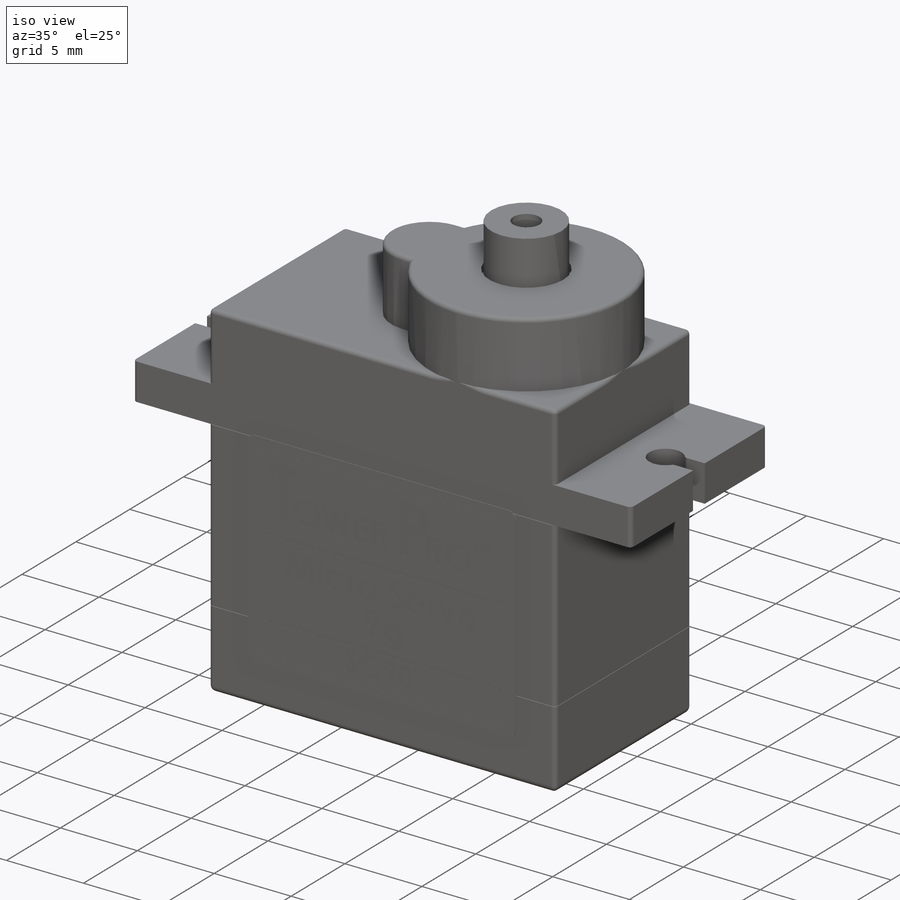
[diagram: iso view]
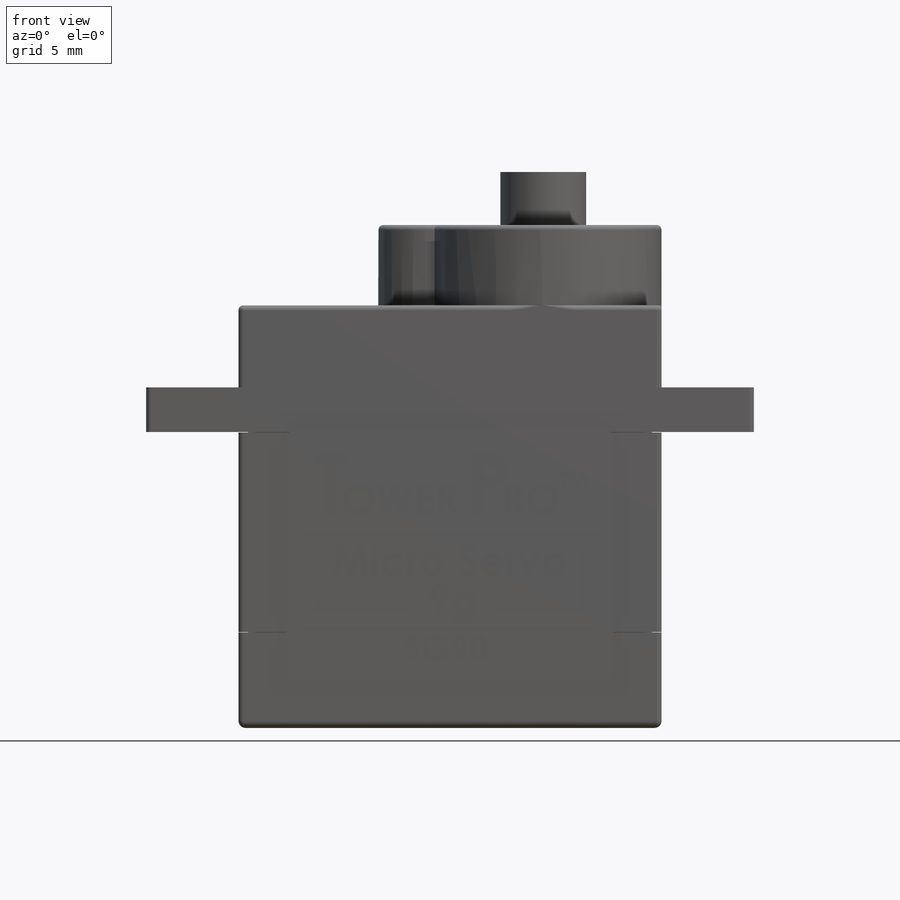
[diagram: front view]
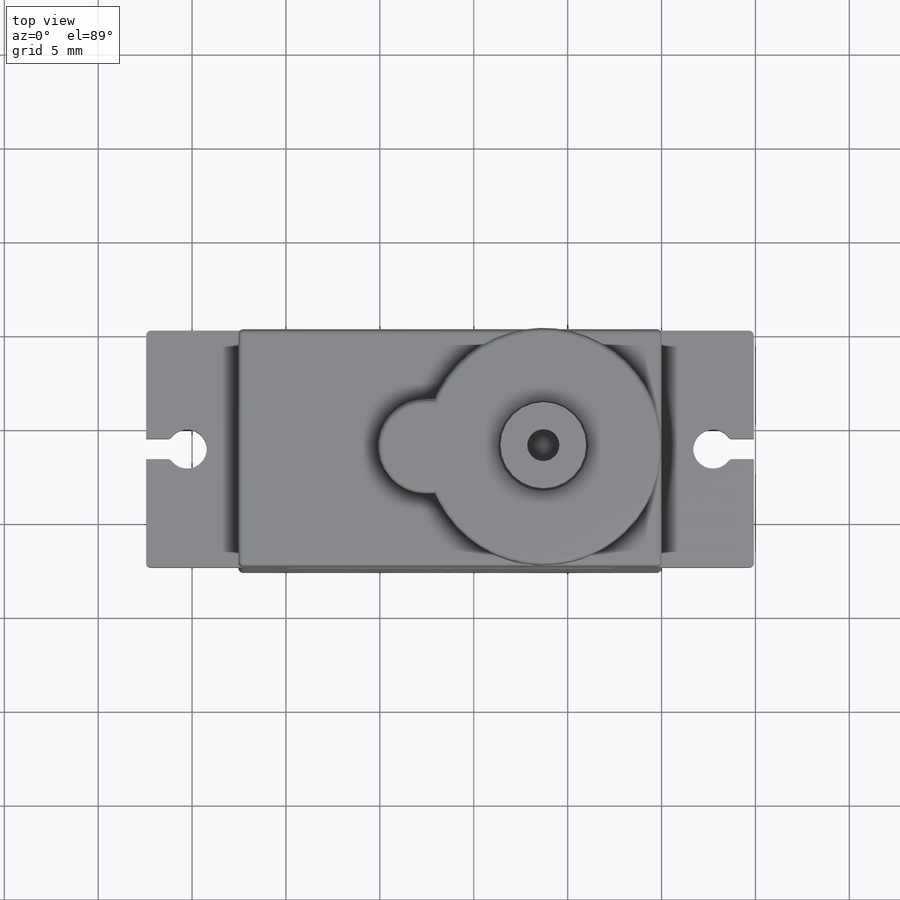
[diagram: top view]
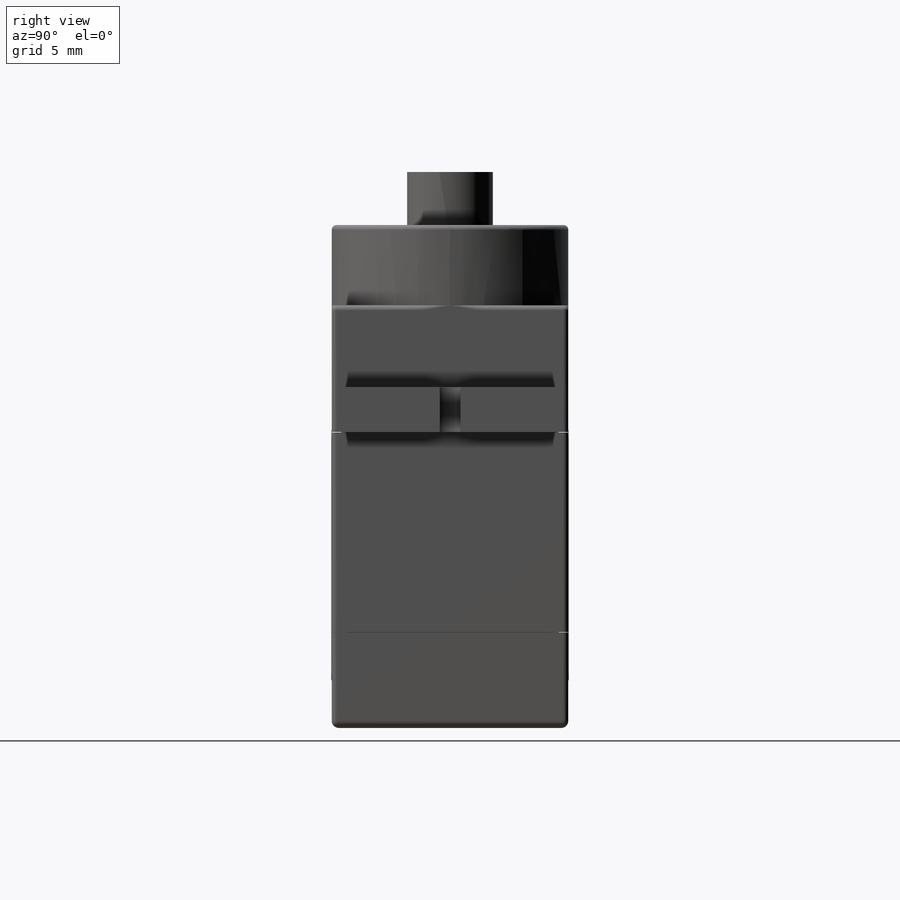
[diagram: right view]
SOLIDWORKS PART (.sldprt)
format: sldprt  version: not decoded by parser v0  size: 1,918,464 bytes
history: native  units: mm
features: sketch x17, cut_extrude x12, extrude x5, pattern_circular x4, fillet x3, material x1 (+17 scaffold rows collapsed)
feature tree (59):
  scaffold x17  (default folders/planes/origin — collapsed)
  material  "Material <not specified>"
  sketch  "Sketch1"  dims[D1=4.3688mm D2=2.3749mm D3=22.5298mm D4=32.3596mm D5=22.5044mm]
  extrude  "Extrude1"  Depth=12.5984mm
  sketch  "Sketch2"  dims[D1=4.9784mm D3=0.0254mm D2=7.4422mm]
  extrude  "Extrude2"  Depth=26.7843mm
  sketch  "Sketch20"
  extrude  "Extrude19"  Depth=0.508mm
  sketch  "Sketch3"  dims[D1=4.572mm]
  extrude  "Extrude3"  Depth=29.6037mm
  sketch  "Sketch4"  dims[D1=2.0955mm D4=0.254mm D2=3.2258mm D3=1.0922mm]
  cut_extrude  "Extrude4"  [1 undecoded]
  sketch  "Sketch5"  dims[c1.D2=1.905mm c1.D3=1.905mm c1.D1=1.524mm c2.D3=0.0762mm]
  cut_extrude  "Extrude5"  Depth=0.762mm
  fillet  "Fillet1"  Radius=0.1778mm
  sketch  "Sketch6"  dims[D1=0.381mm D2=0.635mm]
  cut_extrude  "Extrude6"  Depth=0.508mm
  sketch  "Sketch8"  dims[D1=0.127mm]
  cut_extrude  "Extrude8"  Depth=0.508mm
  sketch  "Sketch10"  dims[D4=0.508mm D1=17.399mm D2=2.54mm D3=13.335mm]
  extrude  "Extrude10"  Depth=0.0254mm
  sketch  "Sketch11"
  cut_extrude  "Extrude11"  Depth=0.00254mm
  sketch  "Sketch13"  dims[D2=0.254mm D4=0.2032mm D5=0.2032mm D6=1.905mm D7=4.826mm D1=0.508mm D3=0.2032mm]
  cut_extrude  "Extrude12"  Depth=0.00254mm
  sketch  "Sketch14"  dims[D2=0.508mm D1=0.127mm]
  cut_extrude  "Extrude13"  Depth=0.000254mm
  sketch  "Sketch15"  dims[D1=1.7145mm]
  cut_extrude  "Extrude14"  Depth=3.81mm
  sketch  "Sketch16"  dims[D1=0.0254mm D2=5.08mm]
  cut_extrude  "Extrude15"  Depth=0.508mm
  sketch  "Sketch17"  dims[D1=0.0mm D2=0.0mm]
  cut_extrude  "Extrude16"  Depth=0.508mm
  sketch  "Sketch18"
  cut_extrude  "Extrude17"  Depth=0.508mm
  sketch  "Sketch19"
  cut_extrude  "Extrude18"  Depth=0.508mm
  fillet  "Fillet2"  Radius=0.254mm
  fillet  "Fillet3"  Radius=0.381mm
  pattern_circular  "CirPattern2"  Count=2 Angle=360deg
  pattern_circular  "CirPattern3"  Count=2 Angle=360deg
  pattern_circular  "CirPattern4"  Count=2 Angle=360deg
  pattern_circular  "CirPattern5"  Count=2 Angle=360deg
decode coverage: 36 of 41 modeling features carry decoded parameters
note: 1 parameter value undecoded
note: suppression state not decoded; provenance and decode notes live in map.json
